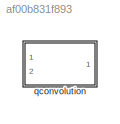
MODEL slx_af00b831f893
KIND library
CONFIG AbsTol = auto
CONFIG FixedStep = auto
CONFIG MaxStep = auto
CONFIG MinStep = auto
CONFIG RelTol = 1e-3
CONFIG SampleTimeConstraint = Unconstrained
CONFIG Solver = VariableStepAuto
CONFIG SolverMode = Auto
CONFIG SolverName = VariableStepAuto
CONFIG StartTime = 0.0
CONFIG StopTime = 10.0
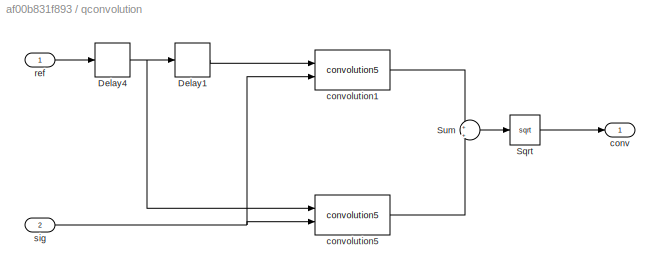
BLOCK [SubSystem] qconvolution
  Ports = [2, 1]
  RequestExecContextInheritance = off
  Variant = off
BLOCK [Delay] qconvolution/Delay1
  DelayLength = 1/(dt*freq*4)
  InputPortMap = u0
  Ports = [1, 1]
BLOCK [Delay] qconvolution/Delay4
  DelayLength = delay
  InputPortMap = u0
  Ports = [1, 1]
BLOCK [Sqrt] qconvolution/Sqrt
BLOCK [Sum] qconvolution/Sum
  IconShape = round
  InputSameDT = off
  Inputs = +|+
  OutDataTypeStr = Inherit: Inherit via internal rule
  Ports = [2, 1]
  SaturateOnIntegerOverflow = off
BLOCK [Outport] qconvolution/conv
  IconDisplay = Port number
BLOCK [Reference] qconvolution/convolution1  REF=convolution/convolution5  (lib defined in slx_6111d6bbbd43)
  Ports = [2, 1]
  SourceBlock = convolution/convolution5
  SourceType = Convolution
BLOCK [Reference] qconvolution/convolution5  REF=convolution/convolution5  (lib defined in slx_6111d6bbbd43)
  Ports = [2, 1]
  SourceBlock = convolution/convolution5
  SourceType = Convolution
BLOCK [Inport] qconvolution/ref
  IconDisplay = Port number
BLOCK [Inport] qconvolution/sig
  IconDisplay = Port number
  Port = 2
LINE qconvolution/Delay1:1 -> qconvolution/convolution1:1
NET qconvolution/Delay4:1 -> qconvolution/Delay1:1, qconvolution/convolution5:1
LINE qconvolution/Sqrt:1 -> qconvolution/conv:1
LINE qconvolution/Sum:1 -> qconvolution/Sqrt:1
LINE qconvolution/convolution1:1 -> qconvolution/Sum:1
LINE qconvolution/convolution5:1 -> qconvolution/Sum:2
LINE qconvolution/ref:1 -> qconvolution/Delay4:1
NET qconvolution/sig:1 -> qconvolution/convolution1:2, qconvolution/convolution5:2
note: NET lines group one-source signal fan-out (src -> all destinations, sorted); 1:1 wires keep LINE
